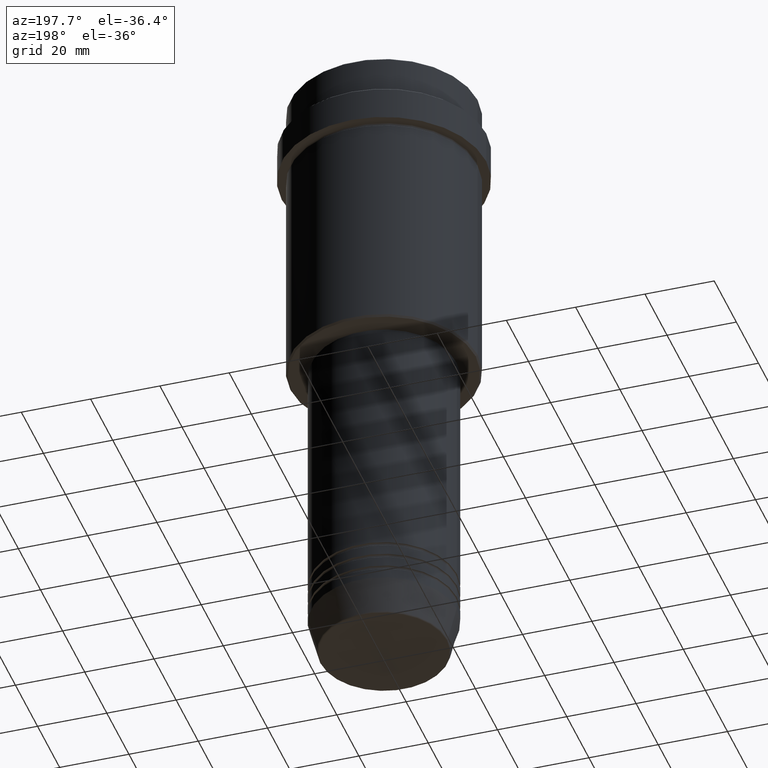
[diagram: clean part render]
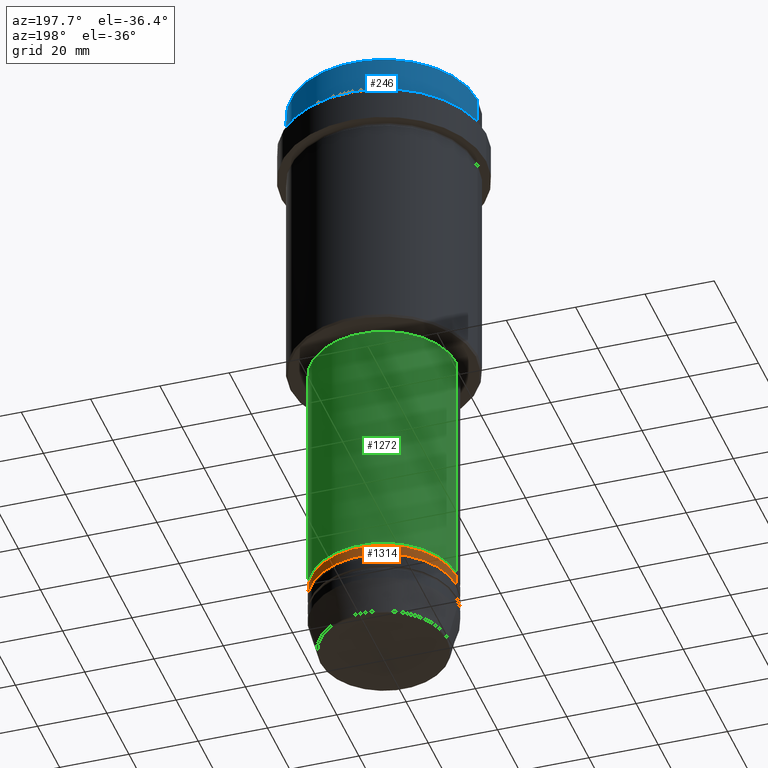
[diagram: same view with three faces highlighted in distinct colors, each labeled with its STEP entity id]
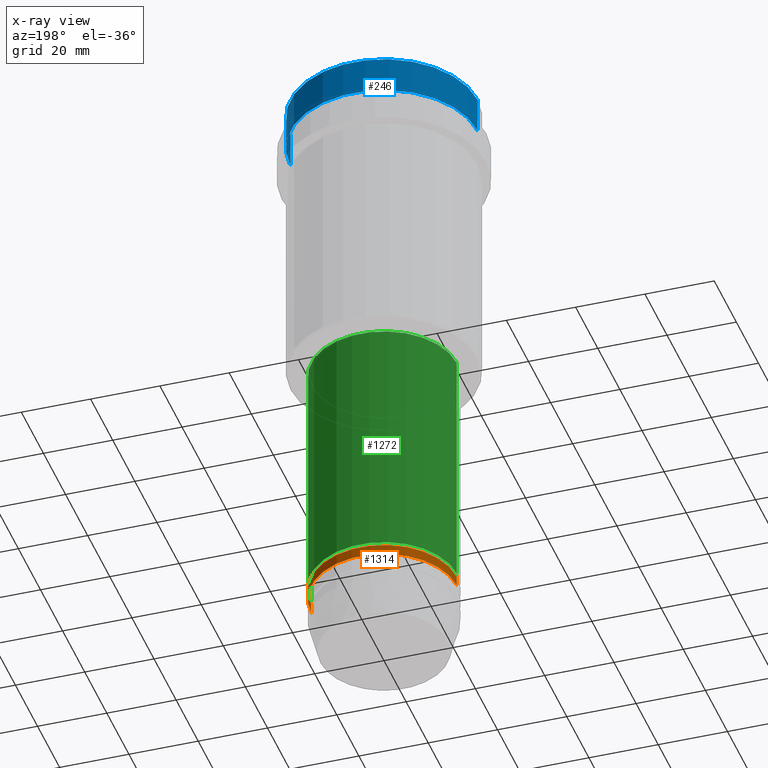
[diagram: x-ray of the same camera — body ghosted, the three highlighted faces saturated]
A machine part, auxiliary view with three faces highlighted in distinct colors.
The next image is the same camera in x-ray (body ghosted, the three faces saturated) — at least one of them is partly hidden behind the body in this view.
Their STEP definitions:

[orange] entity #1314 — the highlighted cylindrical surface (partial cylindrical patch) has radius 21 mm, axis along (-0, -0, 1).
#4 = ORIENTED_EDGE ( 'NONE', *, *, #268, .T. ) ;
#62 = CARTESIAN_POINT ( 'NONE',  ( 21.00000000000000000, 0.000000000000000000, -164.9999999999998579 ) ) ;
#105 = CYLINDRICAL_SURFACE ( 'NONE', #528, 21.00000000000000000 ) ;
#121 = ORIENTED_EDGE ( 'NONE', *, *, #655, .T. ) ;
#152 = CARTESIAN_POINT ( 'NONE',  ( -21.00000000000000000, 2.571758278209441661E-15, -164.9999999999998579 ) ) ;
#168 = VECTOR ( 'NONE', #398, 1000.000000000000000 ) ;
#268 = EDGE_CURVE ( 'NONE', #1229, #525, #1373, .T. ) ;
#304 = CARTESIAN_POINT ( 'NONE',  ( 0.000000000000000000, 0.000000000000000000, 0.000000000000000000 ) ) ;
#318 = DIRECTION ( 'NONE',  ( 1.000000000000000000, 0.000000000000000000, 0.000000000000000000 ) ) ;
#387 = DIRECTION ( 'NONE',  ( 1.000000000000000000, 0.000000000000000000, 0.000000000000000000 ) ) ;
#392 = CIRCLE ( 'NONE', #1315, 21.00000000000000000 ) ;
#398 = DIRECTION ( 'NONE',  ( -0.000000000000000000, -0.000000000000000000, 1.000000000000000000 ) ) ;
#476 = DIRECTION ( 'NONE',  ( -0.000000000000000000, -0.000000000000000000, 1.000000000000000000 ) ) ;
#497 = LINE ( 'NONE', #935, #1013 ) ;
#523 = CARTESIAN_POINT ( 'NONE',  ( 21.00000000000000000, 0.000000000000000000, -161.9999999999998579 ) ) ;
#525 = VERTEX_POINT ( 'NONE', #1232 ) ;
#528 = AXIS2_PLACEMENT_3D ( 'NONE', #304, #1377, #318 ) ;
#580 = ORIENTED_EDGE ( 'NONE', *, *, #1370, .F. ) ;
#629 = DIRECTION ( 'NONE',  ( 1.000000000000000000, 0.000000000000000000, 0.000000000000000000 ) ) ;
#655 = EDGE_CURVE ( 'NONE', #757, #1229, #392, .T. ) ;
#740 = FACE_OUTER_BOUND ( 'NONE', #1094, .T. ) ;
#757 = VERTEX_POINT ( 'NONE', #62 ) ;
#787 = EDGE_CURVE ( 'NONE', #757, #1340, #497, .T. ) ;
#935 = CARTESIAN_POINT ( 'NONE',  ( 21.00000000000000000, 0.000000000000000000, 0.000000000000000000 ) ) ;
#1004 = ORIENTED_EDGE ( 'NONE', *, *, #787, .F. ) ;
#1013 = VECTOR ( 'NONE', #1371, 1000.000000000000000 ) ;
#1094 = EDGE_LOOP ( 'NONE', ( #121, #4, #580, #1004 ) ) ;
#1139 = CARTESIAN_POINT ( 'NONE',  ( -21.00000000000000000, 2.571758278209441661E-15, 0.000000000000000000 ) ) ;
#1163 = CIRCLE ( 'NONE', #1211, 21.00000000000000000 ) ;
#1174 = DIRECTION ( 'NONE',  ( -0.000000000000000000, -0.000000000000000000, 1.000000000000000000 ) ) ;
#1211 = AXIS2_PLACEMENT_3D ( 'NONE', #1282, #1174, #629 ) ;
#1229 = VERTEX_POINT ( 'NONE', #152 ) ;
#1232 = CARTESIAN_POINT ( 'NONE',  ( -21.00000000000000000, 2.571758278209441661E-15, -161.9999999999998579 ) ) ;
#1282 = CARTESIAN_POINT ( 'NONE',  ( 0.000000000000000000, 0.000000000000000000, -161.9999999999998579 ) ) ;
#1314 = ADVANCED_FACE ( 'NONE', ( #740 ), #105, .T. ) ;
#1315 = AXIS2_PLACEMENT_3D ( 'NONE', #1333, #476, #387 ) ;
#1333 = CARTESIAN_POINT ( 'NONE',  ( 0.000000000000000000, 0.000000000000000000, -164.9999999999998579 ) ) ;
#1340 = VERTEX_POINT ( 'NONE', #523 ) ;
#1370 = EDGE_CURVE ( 'NONE', #1340, #525, #1163, .T. ) ;
#1371 = DIRECTION ( 'NONE',  ( -0.000000000000000000, -0.000000000000000000, 1.000000000000000000 ) ) ;
#1373 = LINE ( 'NONE', #1139, #168 ) ;
#1377 = DIRECTION ( 'NONE',  ( -0.000000000000000000, -0.000000000000000000, 1.000000000000000000 ) ) ;

[blue] entity #246 — the highlighted cylindrical surface (partial cylindrical patch) has radius 27 mm, axis along (-0, -0, 1).
#5 = DIRECTION ( 'NONE',  ( -0.000000000000000000, -0.000000000000000000, 1.000000000000000000 ) ) ;
#37 = CARTESIAN_POINT ( 'NONE',  ( 0.000000000000000000, 0.000000000000000000, -10.99999999999998757 ) ) ;
#39 = VERTEX_POINT ( 'NONE', #832 ) ;
#40 = ORIENTED_EDGE ( 'NONE', *, *, #583, .T. ) ;
#50 = FACE_OUTER_BOUND ( 'NONE', #1164, .T. ) ;
#73 = VECTOR ( 'NONE', #5, 1000.000000000000000 ) ;
#137 = EDGE_CURVE ( 'NONE', #39, #752, #301, .T. ) ;
#237 = CARTESIAN_POINT ( 'NONE',  ( -27.00000000000000355, 3.306546357697854128E-15, 0.000000000000000000 ) ) ;
#246 = ADVANCED_FACE ( 'NONE', ( #50 ), #609, .T. ) ;
#270 = DIRECTION ( 'NONE',  ( 1.000000000000000000, 0.000000000000000000, 0.000000000000000000 ) ) ;
#287 = EDGE_CURVE ( 'NONE', #1287, #1251, #939, .T. ) ;
#296 = CARTESIAN_POINT ( 'NONE',  ( 27.00000000000000355, 0.000000000000000000, -0.5000000000000073275 ) ) ;
#298 = LINE ( 'NONE', #970, #306 ) ;
#301 = CIRCLE ( 'NONE', #804, 27.00000000000000355 ) ;
#306 = VECTOR ( 'NONE', #953, 1000.000000000000000 ) ;
#338 = LINE ( 'NONE', #237, #73 ) ;
#367 = CARTESIAN_POINT ( 'NONE',  ( -27.00000000000000355, 3.306546357697854128E-15, -10.99999999999998757 ) ) ;
#583 = EDGE_CURVE ( 'NONE', #752, #1287, #338, .T. ) ;
#590 = DIRECTION ( 'NONE',  ( -0.000000000000000000, -0.000000000000000000, 1.000000000000000000 ) ) ;
#609 = CYLINDRICAL_SURFACE ( 'NONE', #755, 27.00000000000000355 ) ;
#635 = ORIENTED_EDGE ( 'NONE', *, *, #287, .T. ) ;
#752 = VERTEX_POINT ( 'NONE', #367 ) ;
#755 = AXIS2_PLACEMENT_3D ( 'NONE', #1354, #590, #270 ) ;
#758 = DIRECTION ( 'NONE',  ( 1.000000000000000000, 0.000000000000000000, 0.000000000000000000 ) ) ;
#804 = AXIS2_PLACEMENT_3D ( 'NONE', #37, #909, #758 ) ;
#813 = CARTESIAN_POINT ( 'NONE',  ( 0.000000000000000000, 0.000000000000000000, -0.5000000000000073275 ) ) ;
#818 = ORIENTED_EDGE ( 'NONE', *, *, #137, .T. ) ;
#832 = CARTESIAN_POINT ( 'NONE',  ( 27.00000000000000355, 0.000000000000000000, -10.99999999999998757 ) ) ;
#909 = DIRECTION ( 'NONE',  ( -0.000000000000000000, -0.000000000000000000, 1.000000000000000000 ) ) ;
#918 = EDGE_CURVE ( 'NONE', #39, #1251, #298, .T. ) ;
#927 = DIRECTION ( 'NONE',  ( 0.000000000000000000, 0.000000000000000000, -1.000000000000000000 ) ) ;
#939 = CIRCLE ( 'NONE', #964, 27.00000000000000355 ) ;
#953 = DIRECTION ( 'NONE',  ( -0.000000000000000000, -0.000000000000000000, 1.000000000000000000 ) ) ;
#964 = AXIS2_PLACEMENT_3D ( 'NONE', #813, #927, #1250 ) ;
#970 = CARTESIAN_POINT ( 'NONE',  ( 27.00000000000000355, 0.000000000000000000, 0.000000000000000000 ) ) ;
#1164 = EDGE_LOOP ( 'NONE', ( #818, #40, #635, #1323 ) ) ;
#1165 = CARTESIAN_POINT ( 'NONE',  ( -27.00000000000000355, 3.306546357697854128E-15, -0.5000000000000073275 ) ) ;
#1250 = DIRECTION ( 'NONE',  ( 1.000000000000000000, 0.000000000000000000, 0.000000000000000000 ) ) ;
#1251 = VERTEX_POINT ( 'NONE', #296 ) ;
#1287 = VERTEX_POINT ( 'NONE', #1165 ) ;
#1323 = ORIENTED_EDGE ( 'NONE', *, *, #918, .F. ) ;
#1354 = CARTESIAN_POINT ( 'NONE',  ( 0.000000000000000000, 0.000000000000000000, 0.000000000000000000 ) ) ;

[green] entity #1272 — the highlighted cylindrical surface (partial cylindrical patch) has radius 21 mm, axis along (-0, -0, 1).
#53 = EDGE_LOOP ( 'NONE', ( #518, #654, #82, #376 ) ) ;
#82 = ORIENTED_EDGE ( 'NONE', *, *, #209, .F. ) ;
#109 = DIRECTION ( 'NONE',  ( 1.000000000000000000, 0.000000000000000000, 0.000000000000000000 ) ) ;
#136 = LINE ( 'NONE', #245, #190 ) ;
#190 = VECTOR ( 'NONE', #564, 1000.000000000000000 ) ;
#194 = CARTESIAN_POINT ( 'NONE',  ( 21.00000000000000000, 0.000000000000000000, -89.00000000000000000 ) ) ;
#209 = EDGE_CURVE ( 'NONE', #421, #1243, #1033, .T. ) ;
#220 = CARTESIAN_POINT ( 'NONE',  ( 21.00000000000000000, 0.000000000000000000, 0.000000000000000000 ) ) ;
#245 = CARTESIAN_POINT ( 'NONE',  ( -21.00000000000000000, 2.571758278209441661E-15, 0.000000000000000000 ) ) ;
#290 = DIRECTION ( 'NONE',  ( 1.000000000000000000, 0.000000000000000000, 0.000000000000000000 ) ) ;
#376 = ORIENTED_EDGE ( 'NONE', *, *, #430, .F. ) ;
#389 = DIRECTION ( 'NONE',  ( -0.000000000000000000, -0.000000000000000000, 1.000000000000000000 ) ) ;
#391 = VECTOR ( 'NONE', #1303, 1000.000000000000000 ) ;
#397 = EDGE_CURVE ( 'NONE', #450, #1274, #1215, .T. ) ;
#421 = VERTEX_POINT ( 'NONE', #194 ) ;
#430 = EDGE_CURVE ( 'NONE', #450, #421, #627, .T. ) ;
#450 = VERTEX_POINT ( 'NONE', #652 ) ;
#518 = ORIENTED_EDGE ( 'NONE', *, *, #397, .T. ) ;
#524 = AXIS2_PLACEMENT_3D ( 'NONE', #1388, #649, #290 ) ;
#564 = DIRECTION ( 'NONE',  ( -0.000000000000000000, -0.000000000000000000, 1.000000000000000000 ) ) ;
#626 = EDGE_CURVE ( 'NONE', #1274, #1243, #136, .T. ) ;
#627 = LINE ( 'NONE', #220, #391 ) ;
#643 = AXIS2_PLACEMENT_3D ( 'NONE', #936, #389, #931 ) ;
#649 = DIRECTION ( 'NONE',  ( -0.000000000000000000, -0.000000000000000000, 1.000000000000000000 ) ) ;
#652 = CARTESIAN_POINT ( 'NONE',  ( 21.00000000000000000, 0.000000000000000000, -160.9999999999998579 ) ) ;
#654 = ORIENTED_EDGE ( 'NONE', *, *, #626, .T. ) ;
#728 = CARTESIAN_POINT ( 'NONE',  ( -21.00000000000000000, 2.571758278209441661E-15, -160.9999999999998579 ) ) ;
#854 = CYLINDRICAL_SURFACE ( 'NONE', #524, 21.00000000000000000 ) ;
#931 = DIRECTION ( 'NONE',  ( 1.000000000000000000, 0.000000000000000000, 0.000000000000000000 ) ) ;
#936 = CARTESIAN_POINT ( 'NONE',  ( 0.000000000000000000, 0.000000000000000000, -89.00000000000000000 ) ) ;
#977 = CARTESIAN_POINT ( 'NONE',  ( 0.000000000000000000, 0.000000000000000000, -160.9999999999998579 ) ) ;
#1033 = CIRCLE ( 'NONE', #643, 21.00000000000000000 ) ;
#1066 = CARTESIAN_POINT ( 'NONE',  ( -21.00000000000000000, 2.571758278209441661E-15, -89.00000000000000000 ) ) ;
#1215 = CIRCLE ( 'NONE', #1334, 21.00000000000000000 ) ;
#1243 = VERTEX_POINT ( 'NONE', #1066 ) ;
#1272 = ADVANCED_FACE ( 'NONE', ( #1276 ), #854, .T. ) ;
#1274 = VERTEX_POINT ( 'NONE', #728 ) ;
#1276 = FACE_OUTER_BOUND ( 'NONE', #53, .T. ) ;
#1303 = DIRECTION ( 'NONE',  ( -0.000000000000000000, -0.000000000000000000, 1.000000000000000000 ) ) ;
#1334 = AXIS2_PLACEMENT_3D ( 'NONE', #977, #1403, #109 ) ;
#1388 = CARTESIAN_POINT ( 'NONE',  ( 0.000000000000000000, 0.000000000000000000, 0.000000000000000000 ) ) ;
#1403 = DIRECTION ( 'NONE',  ( -0.000000000000000000, -0.000000000000000000, 1.000000000000000000 ) ) ;